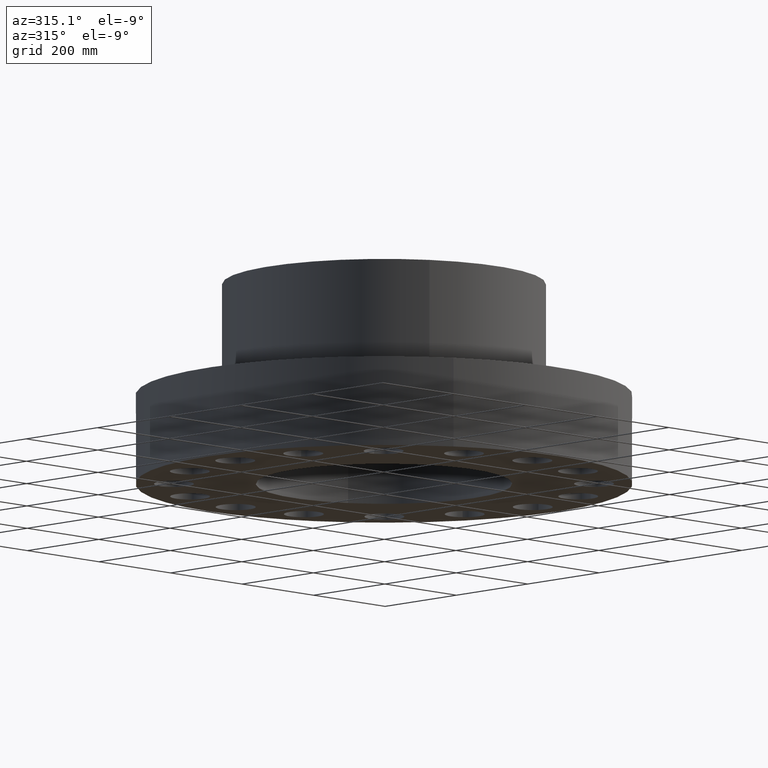
[diagram: clean part render]
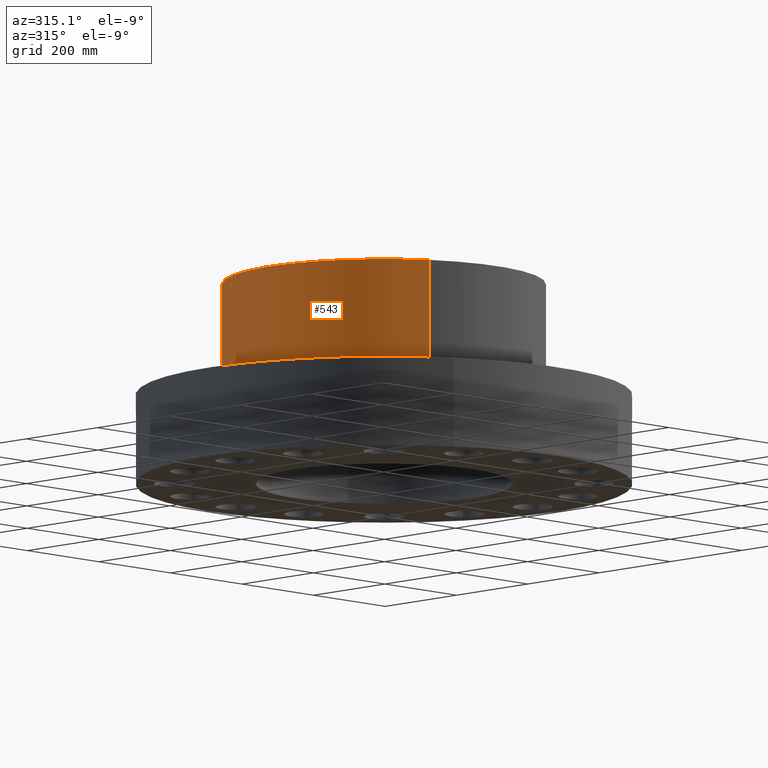
[diagram: same view with one face highlighted and labeled with its STEP entity id]
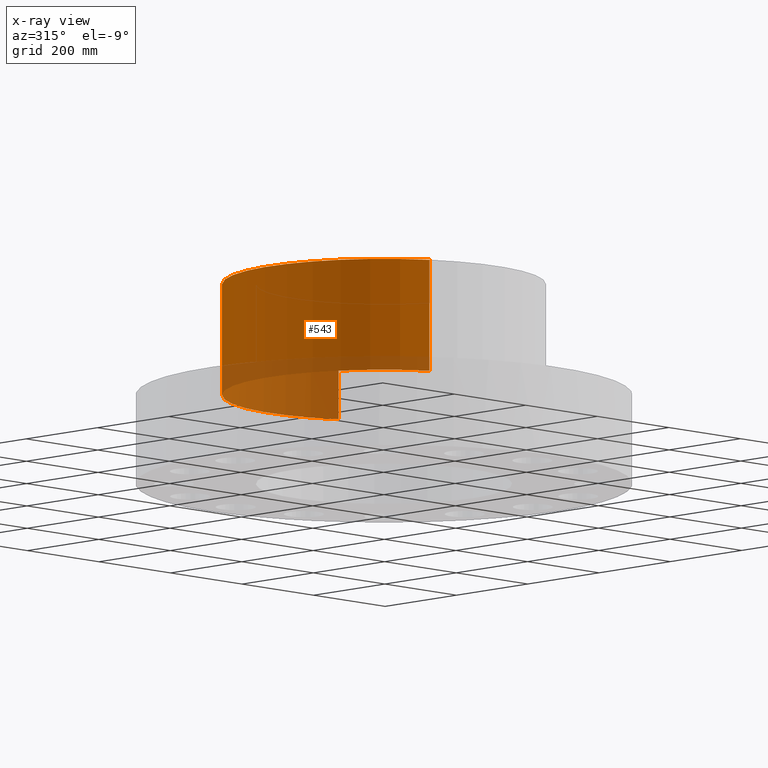
[diagram: x-ray of the same camera — body ghosted, the highlighted face saturated]
A machine part, auxiliary view. The second image highlights one B-rep face of the part: STEP entity #543.
The next image is the same camera in x-ray: the body ghosted, the highlighted face saturated — about 27% of this face is hidden behind the body in this view.
In plain terms, the highlighted cylindrical surface (partial cylindrical patch) has radius 320.675 mm, axis along (0, 0, -1).
Its self-contained STEP definition (entity closure, byte-faithful):
#121=AXIS2_PLACEMENT_3D('Circle Axis2P3D',#119,#120,$) ;
#504=AXIS2_PLACEMENT_3D('Cylinder Axis2P3D',#501,#502,#503) ;
#534=AXIS2_PLACEMENT_3D('Circle Axis2P3D',#532,#533,$) ;
#119=CARTESIAN_POINT('Axis2P3D Location',(0.,0.,7.00000000003)) ;
#123=CARTESIAN_POINT('Vertex',(-6.0527474249,-11.0794798439,7.00000000003)) ;
#125=CARTESIAN_POINT('Vertex',(6.0527474249,11.0794798439,7.00000000003)) ;
#501=CARTESIAN_POINT('Axis2P3D Location',(0.,0.,7.75000000003)) ;
#506=CARTESIAN_POINT('Line Origine',(6.0527474249,11.0794798439,11.375)) ;
#510=CARTESIAN_POINT('Vertex',(6.0527474249,11.0794798439,15.7500000001)) ;
#517=CARTESIAN_POINT('Vertex',(-6.0527474249,-11.0794798439,15.7500000001)) ;
#520=CARTESIAN_POINT('Line Origine',(-6.0527474249,-11.0794798439,11.375)) ;
#532=CARTESIAN_POINT('Axis2P3D Location',(0.,0.,15.7500000001)) ;
#120=DIRECTION('Axis2P3D Direction',(0.,0.,-0.0393700787402)) ;
#502=DIRECTION('Axis2P3D Direction',(0.,0.,-0.0393700787402)) ;
#503=DIRECTION('Axis2P3D XDirection',(-0.0188750212049,-0.0345504945626,0.)) ;
#507=DIRECTION('Vector Direction',(0.,0.,-0.0393700787402)) ;
#521=DIRECTION('Vector Direction',(0.,0.,-0.0393700787402)) ;
#533=DIRECTION('Axis2P3D Direction',(0.,0.,-0.0393700787402)) ;
#508=VECTOR('Line Direction',#507,0.0393700787402) ;
#522=VECTOR('Line Direction',#521,0.0393700787402) ;
#538=ORIENTED_EDGE('',*,*,#127,.F.) ;
#539=ORIENTED_EDGE('',*,*,#524,.T.) ;
#540=ORIENTED_EDGE('',*,*,#536,.T.) ;
#541=ORIENTED_EDGE('',*,*,#512,.F.) ;
#543=ADVANCED_FACE('PartBody',(#542),#505,.T.) ;
#122=CIRCLE('generated circle',#121,12.6250000001) ;
#535=CIRCLE('generated circle',#534,12.6250000001) ;
#505=CYLINDRICAL_SURFACE('generated cylinder',#504,12.6250000001) ;
#127=EDGE_CURVE('',#124,#126,#122,.T.) ;
#512=EDGE_CURVE('',#126,#511,#509,.F.) ;
#524=EDGE_CURVE('',#124,#518,#523,.F.) ;
#536=EDGE_CURVE('',#518,#511,#535,.T.) ;
#537=EDGE_LOOP('',(#538,#539,#540,#541)) ;
#542=FACE_OUTER_BOUND('',#537,.T.) ;
#509=LINE('Line',#506,#508) ;
#523=LINE('Line',#520,#522) ;
#124=VERTEX_POINT('',#123) ;
#126=VERTEX_POINT('',#125) ;
#511=VERTEX_POINT('',#510) ;
#518=VERTEX_POINT('',#517) ;